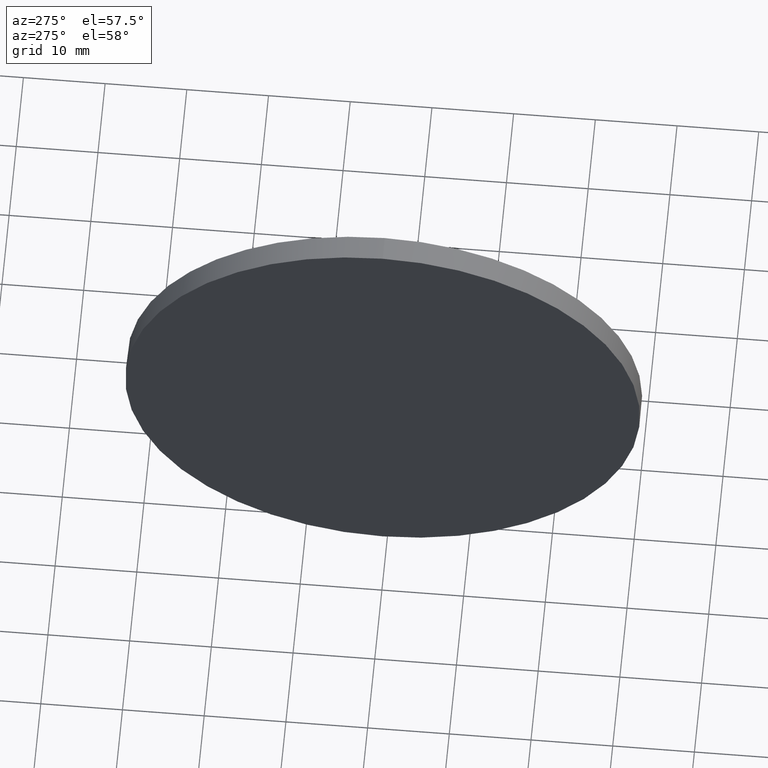
[diagram: clean part render]
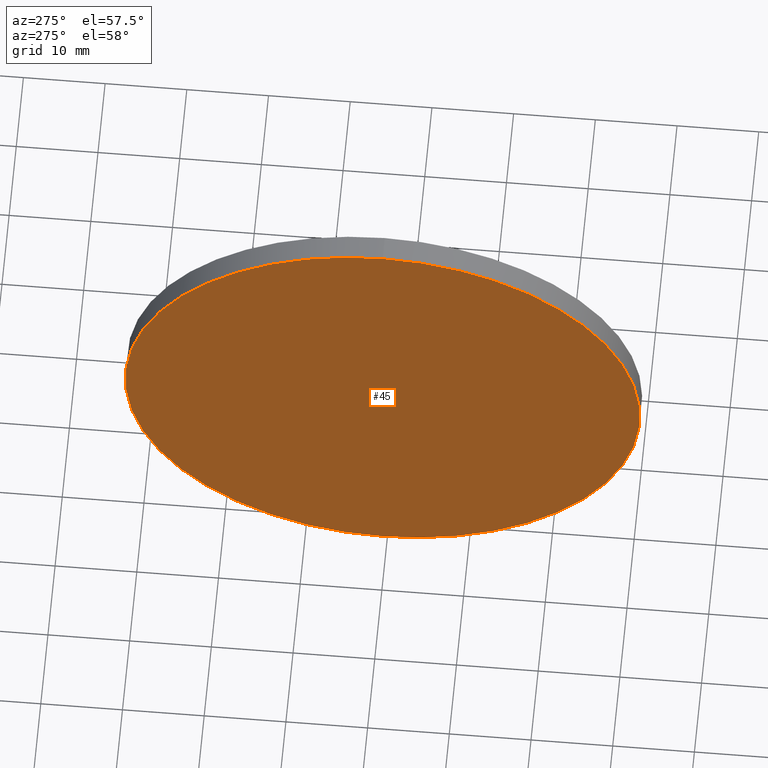
[diagram: same view with one face highlighted and labeled with its STEP entity id]
A machine part, auxiliary view. The second image highlights one B-rep face of the part: STEP entity #45.
In plain terms, the highlighted planar face has unit normal (1, 0, 0).
Its self-contained STEP definition (entity closure, byte-faithful):
#8 = CIRCLE ( 'NONE', #59, 31.50000000000000000 ) ;
#18 = DIRECTION ( 'NONE',  ( -1.000000000000000000, -0.0000000000000000000, -0.0000000000000000000 ) ) ;
#19 = CARTESIAN_POINT ( 'NONE',  ( 226.8933010013870400, 130.5185814569561000, 0.0000000000000000000 ) ) ;
#23 = VERTEX_POINT ( 'NONE', #126 ) ;
#29 = CIRCLE ( 'NONE', #37, 31.50000000000000000 ) ;
#30 = EDGE_CURVE ( 'NONE', #23, #177, #8, .T. ) ;
#37 = AXIS2_PLACEMENT_3D ( 'NONE', #19, #161, #52 ) ;
#45 = ADVANCED_FACE ( 'NONE', ( #149 ), #100, .F. ) ;
#52 = DIRECTION ( 'NONE',  ( 0.0000000000000000000, 0.0000000000000000000, 1.000000000000000000 ) ) ;
#54 = CARTESIAN_POINT ( 'NONE',  ( 226.8933010013870400, 130.5185814569561000, 0.0000000000000000000 ) ) ;
#59 = AXIS2_PLACEMENT_3D ( 'NONE', #54, #18, #61 ) ;
#61 = DIRECTION ( 'NONE',  ( 0.0000000000000000000, 0.0000000000000000000, 1.000000000000000000 ) ) ;
#64 = CARTESIAN_POINT ( 'NONE',  ( 226.8933010013870400, 130.5185814569561000, 0.0000000000000000000 ) ) ;
#100 = PLANE ( 'NONE',  #109 ) ;
#109 = AXIS2_PLACEMENT_3D ( 'NONE', #64, #142, #114 ) ;
#111 = ORIENTED_EDGE ( 'NONE', *, *, #116, .T. ) ;
#114 = DIRECTION ( 'NONE',  ( 0.0000000000000000000, 0.0000000000000000000, -1.000000000000000000 ) ) ;
#116 = EDGE_CURVE ( 'NONE', #177, #23, #29, .T. ) ;
#126 = CARTESIAN_POINT ( 'NONE',  ( 226.8933010013870400, 130.5185814569561000, -31.50000000000000000 ) ) ;
#142 = DIRECTION ( 'NONE',  ( 1.000000000000000000, 0.0000000000000000000, 0.0000000000000000000 ) ) ;
#149 = FACE_OUTER_BOUND ( 'NONE', #170, .T. ) ;
#155 = ORIENTED_EDGE ( 'NONE', *, *, #30, .T. ) ;
#161 = DIRECTION ( 'NONE',  ( -1.000000000000000000, -0.0000000000000000000, -0.0000000000000000000 ) ) ;
#169 = CARTESIAN_POINT ( 'NONE',  ( 226.8933010013870400, 130.5185814569561000, 31.50000000000000000 ) ) ;
#170 = EDGE_LOOP ( 'NONE', ( #111, #155 ) ) ;
#177 = VERTEX_POINT ( 'NONE', #169 ) ;